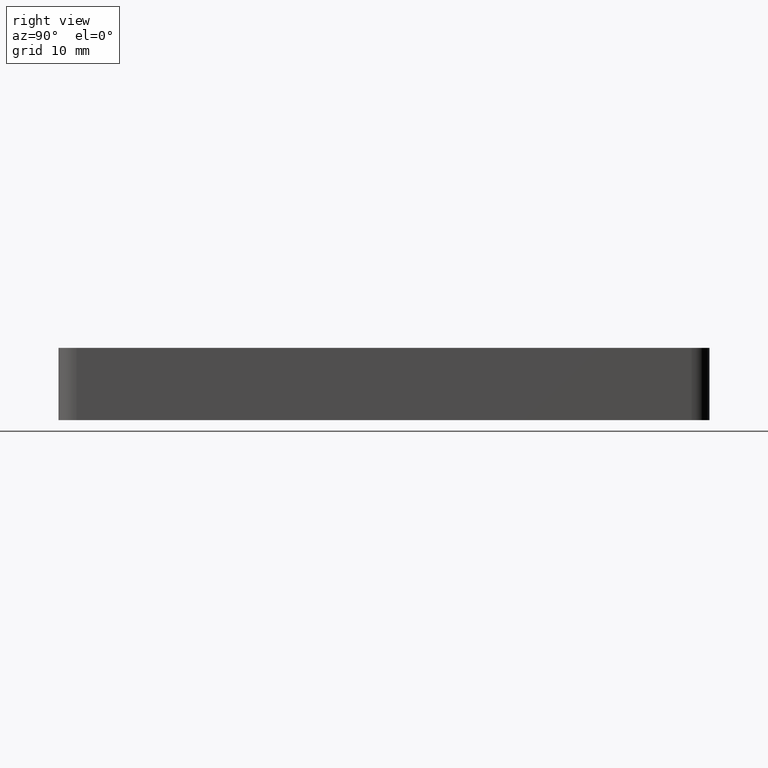
[diagram: clean part render]
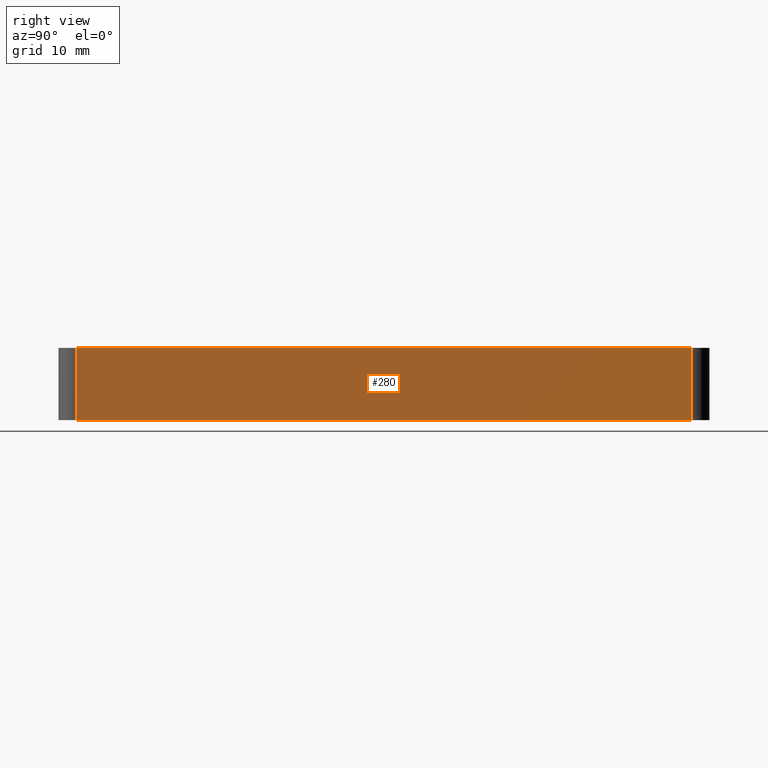
[diagram: same view with one face highlighted and labeled with its STEP entity id]
A machine part, right view. The second image highlights one B-rep face of the part: STEP entity #280.
In plain terms, the highlighted planar face has unit normal (1, 0, 0).
Its self-contained STEP definition (entity closure, byte-faithful):
#20=LINE('',#460,#36);
#21=LINE('',#463,#37);
#22=LINE('',#465,#38);
#23=LINE('',#466,#39);
#36=VECTOR('',#379,10.);
#37=VECTOR('',#382,85.);
#38=VECTOR('',#383,85.);
#39=VECTOR('',#384,10.);
#50=PLANE('',#313);
#78=FACE_OUTER_BOUND('',#102,.T.);
#102=EDGE_LOOP('',(#219,#220,#221,#222));
#149=VERTEX_POINT('',#456);
#150=VERTEX_POINT('',#458);
#151=VERTEX_POINT('',#462);
#152=VERTEX_POINT('',#464);
#178=EDGE_CURVE('',#149,#150,#20,.T.);
#179=EDGE_CURVE('',#151,#149,#21,.T.);
#180=EDGE_CURVE('',#152,#150,#22,.T.);
#181=EDGE_CURVE('',#151,#152,#23,.T.);
#219=ORIENTED_EDGE('',*,*,#179,.T.);
#220=ORIENTED_EDGE('',*,*,#178,.T.);
#221=ORIENTED_EDGE('',*,*,#180,.F.);
#222=ORIENTED_EDGE('',*,*,#181,.F.);
#280=ADVANCED_FACE('',(#78),#50,.T.);
#313=AXIS2_PLACEMENT_3D('',#461,#380,#381);
#379=DIRECTION('',(0.,0.,1.));
#380=DIRECTION('center_axis',(1.,0.,0.));
#381=DIRECTION('ref_axis',(0.,1.,0.));
#382=DIRECTION('',(0.,1.,0.));
#383=DIRECTION('',(0.,1.,0.));
#384=DIRECTION('',(0.,0.,1.));
#456=CARTESIAN_POINT('',(47.6256764380845,88.1013335529333,0.));
#458=CARTESIAN_POINT('',(47.6256764380845,88.1013335529333,10.));
#460=CARTESIAN_POINT('',(47.6256764380845,88.1013335529333,0.));
#461=CARTESIAN_POINT('Origin',(47.6256764380845,3.10133355293328,0.));
#462=CARTESIAN_POINT('',(47.6256764380845,3.10133355293328,0.));
#463=CARTESIAN_POINT('',(47.6256764380845,3.10133355293328,0.));
#464=CARTESIAN_POINT('',(47.6256764380845,3.10133355293328,10.));
#465=CARTESIAN_POINT('',(47.6256764380845,3.10133355293328,10.));
#466=CARTESIAN_POINT('',(47.6256764380845,3.10133355293328,0.));